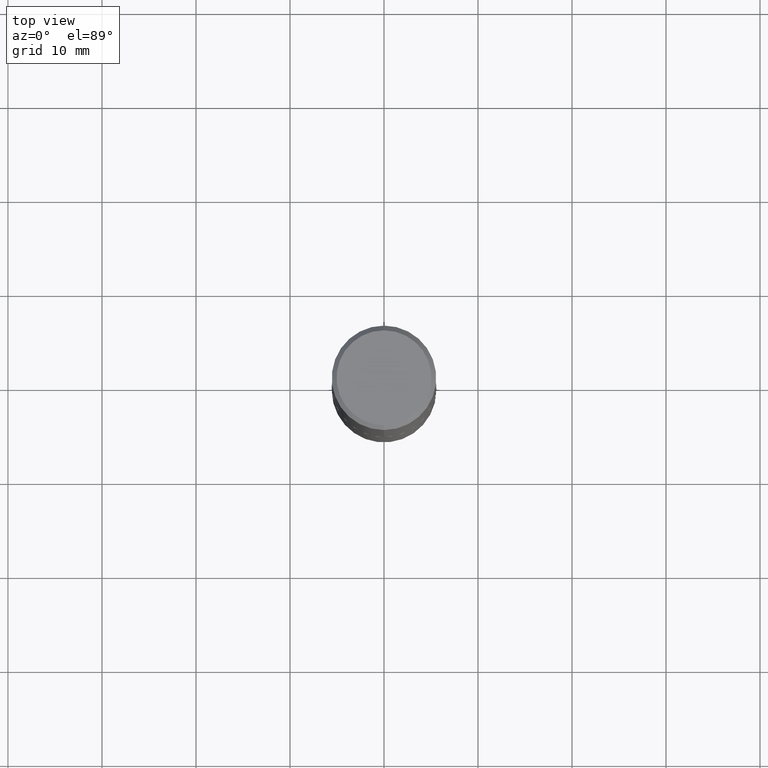
[diagram: clean part render]
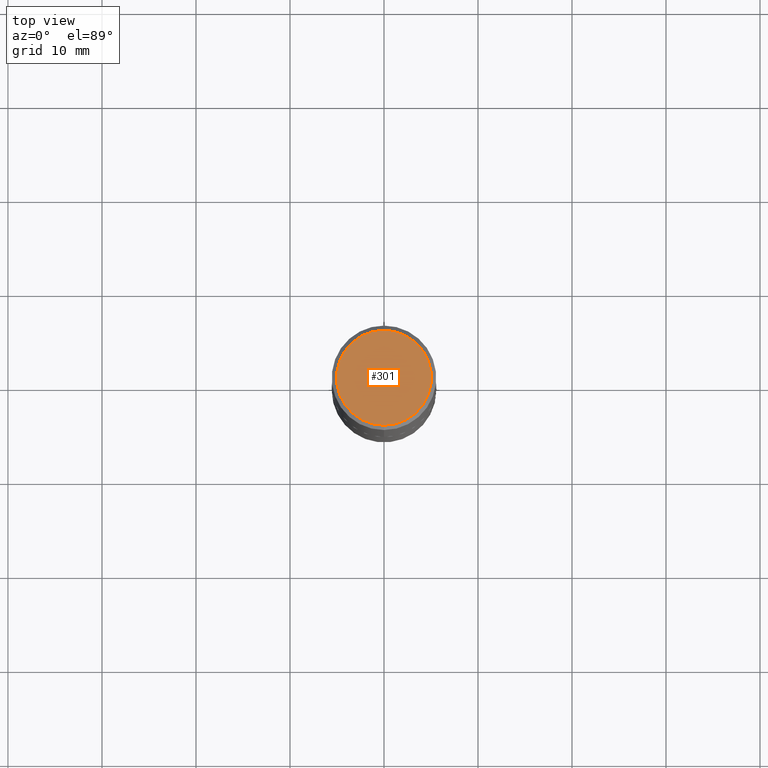
[diagram: same view with one face highlighted and labeled with its STEP entity id]
A machine part, top view. The second image highlights one B-rep face of the part: STEP entity #301.
In plain terms, the highlighted planar face has unit normal (0, -0, -1).
Its self-contained STEP definition (entity closure, byte-faithful):
#6 = ORIENTED_EDGE ( 'NONE', *, *, #153, .T. ) ;
#46 = CARTESIAN_POINT ( 'NONE',  ( 1.457693458967008136E-15, 0.1987500000000000100, -7.451540659762801031E-16 ) ) ;
#61 = AXIS2_PLACEMENT_3D ( 'NONE', #264, #233, #276 ) ;
#78 = CARTESIAN_POINT ( 'NONE',  ( -1.432128957034806803E-15, -0.1987500000000000100, 6.429457658532835252E-16 ) ) ;
#116 = DIRECTION ( 'NONE',  ( -2.445054220858351343E-29, 3.492075048627833097E-15, 1.000000000000000000 ) ) ;
#153 = EDGE_CURVE ( 'NONE', #410, #379, #390, .T. ) ;
#217 = CARTESIAN_POINT ( 'NONE',  ( 1.249524178112448832E-45, -1.784595273110905928E-31, -5.110415006149825816E-17 ) ) ;
#225 = CIRCLE ( 'NONE', #232, 0.1987500000000000100 ) ;
#232 = AXIS2_PLACEMENT_3D ( 'NONE', #217, #116, #338 ) ;
#233 = DIRECTION ( 'NONE',  ( 2.445054220858351343E-29, -3.492075048627833097E-15, -1.000000000000000000 ) ) ;
#236 = FACE_OUTER_BOUND ( 'NONE', #297, .T. ) ;
#264 = CARTESIAN_POINT ( 'NONE',  ( 1.387863832190145233E-15, 0.1987500000000000100, -7.196019909455309833E-16 ) ) ;
#275 = AXIS2_PLACEMENT_3D ( 'NONE', #343, #378, #345 ) ;
#276 = DIRECTION ( 'NONE',  ( 6.982962677686265922E-15, 1.000000000000000000, -3.492075048627833097E-15 ) ) ;
#297 = EDGE_LOOP ( 'NONE', ( #356, #6 ) ) ;
#301 = ADVANCED_FACE ( 'NONE', ( #236 ), #364, .F. ) ;
#338 = DIRECTION ( 'NONE',  ( -6.982962677686265133E-15, -1.000000000000000000, 3.492075048627833097E-15 ) ) ;
#343 = CARTESIAN_POINT ( 'NONE',  ( 1.249524178112448832E-45, -1.784595273110905928E-31, -5.110415006149825816E-17 ) ) ;
#345 = DIRECTION ( 'NONE',  ( -6.982962677686265133E-15, -1.000000000000000000, 3.492075048627833097E-15 ) ) ;
#356 = ORIENTED_EDGE ( 'NONE', *, *, #371, .T. ) ;
#364 = PLANE ( 'NONE',  #61 ) ;
#371 = EDGE_CURVE ( 'NONE', #379, #410, #225, .T. ) ;
#378 = DIRECTION ( 'NONE',  ( -2.445054220858351343E-29, 3.492075048627833097E-15, 1.000000000000000000 ) ) ;
#379 = VERTEX_POINT ( 'NONE', #46 ) ;
#390 = CIRCLE ( 'NONE', #275, 0.1987500000000000100 ) ;
#410 = VERTEX_POINT ( 'NONE', #78 ) ;